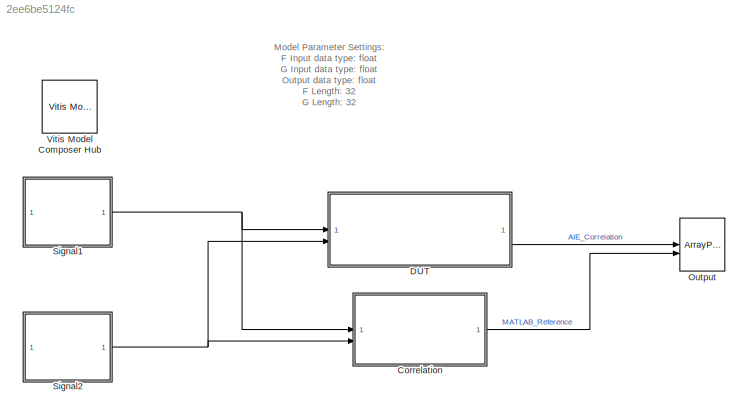
MODEL slx_2ee6be5124fc
KIND model
CONFIG AbsTol = auto
CONFIG EnableMultiTasking = off
CONFIG FixedStep = auto
CONFIG MaxStep = auto
CONFIG MinStep = auto
CONFIG RelTol = 1e-3
CONFIG SampleTimeConstraint = Unconstrained
CONFIG SolverName = VariableStepAuto
CONFIG StartTime = 0.0
CONFIG StopTime = 1024/100e6
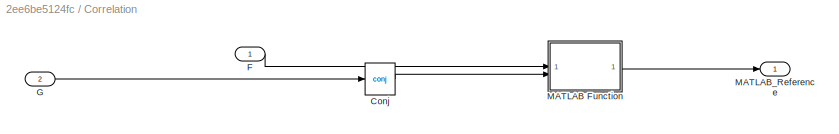
BLOCK [SubSystem] Correlation
BLOCK [Math] Correlation/Conj
  Operator = conj
BLOCK [Inport] Correlation/F
BLOCK [Inport] Correlation/G
  Port = 2
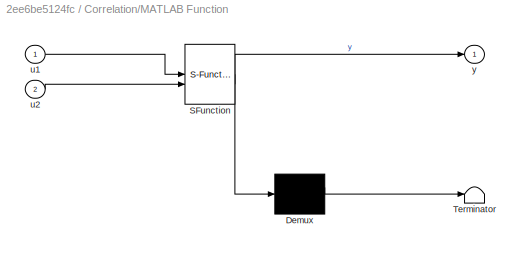
BLOCK [SubSystem] Correlation/MATLAB Function
  ErrorFcn = Stateflow.Translate.translate
  PermitHierarchicalResolution = ExplicitOnly
  SFBlockType = MATLAB Function
  TreatAsAtomicUnit = on
BLOCK [Demux] Correlation/MATLAB Function/ Demux 
  Outputs = 1
BLOCK [S-Function] Correlation/MATLAB Function/ SFunction 
  EnableBusSupport = on
  FunctionName = sf_sfun
  PortCounts = [2 2]
  SFcnIsStateOwnerBlock = off
  SFunctionDeploymentMode = off
  Tag = Stateflow S-Function 2
BLOCK [Terminator] Correlation/MATLAB Function/ Terminator 
BLOCK [Inport] Correlation/MATLAB Function/u1
BLOCK [Inport] Correlation/MATLAB Function/u2
  Port = 2
BLOCK [Outport] Correlation/MATLAB Function/y
BLOCK [Outport] Correlation/MATLAB_Reference
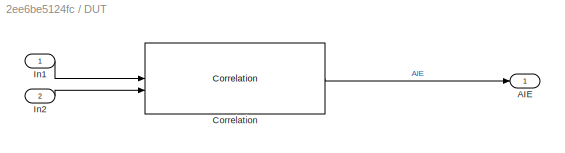
BLOCK [SubSystem] DUT
BLOCK [Outport] DUT/AIE
BLOCK [Reference] DUT/Correlation  REF=aieDSP/Correlation
  SourceBlock = aieDSP/Correlation
  SourceType = Correlation
BLOCK [Inport] DUT/In1
BLOCK [Inport] DUT/In2
  Port = 2
BLOCK [ArrayPlot] Output
  GraphicalSettings = {"Style":{"BackgroundColor":[0.12941176470588237,0.12941176470588237,0.12941176470588237],"AxesColor":[0.07058823529411765,0.07058823529411765,0.07058823529411765],"LabelsColor":[0.8509803921568627,0.8509803921568627,0.8509803921568627],"PreserveColors":false,"Visible":[true,true],"LineStyle":["-","-"],"LineColor":[[1,0.9098039215686274,0.39215686274509803],[0.14901960784313725,0.5490196078431373,...<+628ch>
  NumInputPorts = 2
  ScopeFrameLocation = window
  ShowLegend = on
  Visible = on
  WasSavedAsWebScope = on
  WindowPosition = [1021.000000,450.000000,800.000000,516.000000,]
  YLimits = [-12.6852 1.8596]
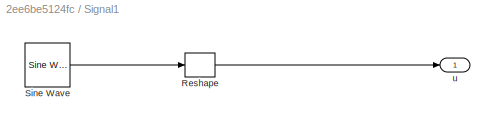
BLOCK [SubSystem] Signal1
BLOCK [Reshape] Signal1/Reshape
BLOCK [Reference] Signal1/Sine Wave  REF=dspsrcs4/Sine Wave
  SourceBlock = dspsrcs4/Sine Wave
  SourceType = Sine Wave
BLOCK [Outport] Signal1/u
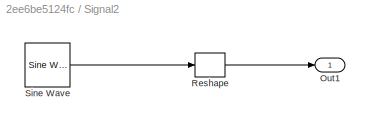
BLOCK [SubSystem] Signal2
BLOCK [Outport] Signal2/Out1
BLOCK [Reshape] Signal2/Reshape
BLOCK [Reference] Signal2/Sine Wave  REF=dspsrcs4/Sine Wave
  SourceBlock = dspsrcs4/Sine Wave
  SourceType = Sine Wave
BLOCK [Reference] Vitis Model Composer Hub  REF=vmcUtilities/Vitis Model Composer Hub
  SourceBlock = vmcUtilities/Vitis Model Composer Hub
  SourceType = VMC Hub
  Tag = genX
  UserDataPersistent = on
ANNOTATION (root): Model Parameter Settings: F Input data type: float G Input data type: float Output data type: float F Length: 32 G Length: 32 Computation mode: Full
LINE Correlation/Conj:1 -> Correlation/MATLAB Function:2
LINE Correlation/F:1 -> Correlation/MATLAB Function:1
LINE Correlation/G:1 -> Correlation/Conj:1
LINE Correlation/MATLAB Function:1 -> Correlation/MATLAB_Reference:1
LINE Correlation:1 -> Output:2
LINE DUT/Correlation:1 -> DUT/AIE:1
LINE DUT/In1:1 -> DUT/Correlation:1
LINE DUT/In2:1 -> DUT/Correlation:2
LINE DUT:1 -> Output:1
LINE Signal1/Reshape:1 -> Signal1/u:1
LINE Signal1/Sine Wave:1 -> Signal1/Reshape:1
NET Signal1:1 -> Correlation:1, DUT:1
LINE Signal2/Reshape:1 -> Signal2/Out1:1
LINE Signal2/Sine Wave:1 -> Signal2/Reshape:1
NET Signal2:1 -> Correlation:2, DUT:2
note: NET lines group one-source signal fan-out (src -> all destinations, sorted); 1:1 wires keep LINE
CHART Correlation/MATLAB Function states=1 transitions=1
  STATE_LABEL 'eML_blk_kernel()'
  STATE_LABEL "SCRIPT:\nfunction y = func(u1,u2)\n\ny = conv(u1,flip(u2),'full');\n\n"
CHART  states=0 transitions=0
